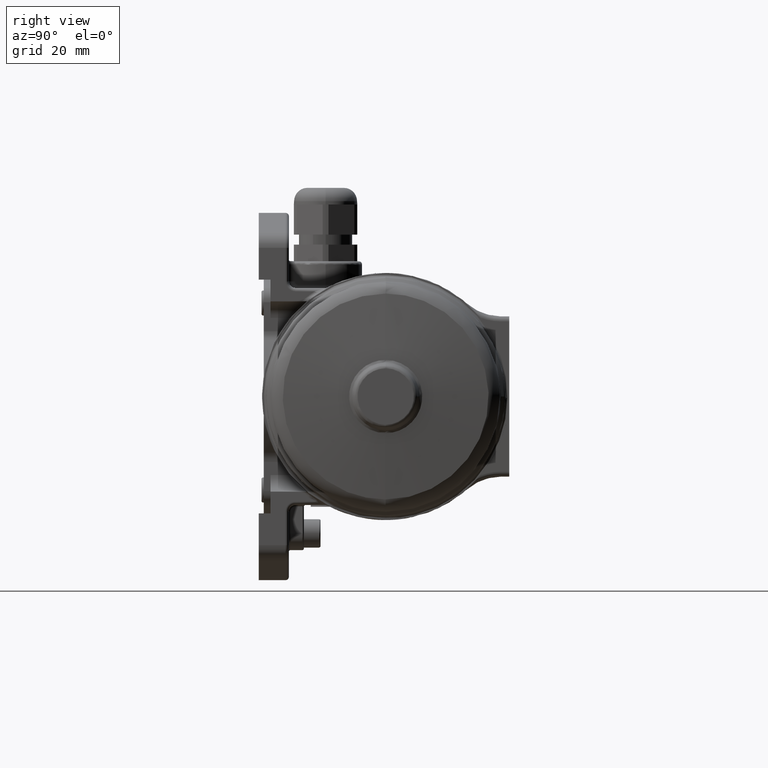
[diagram: clean part render]
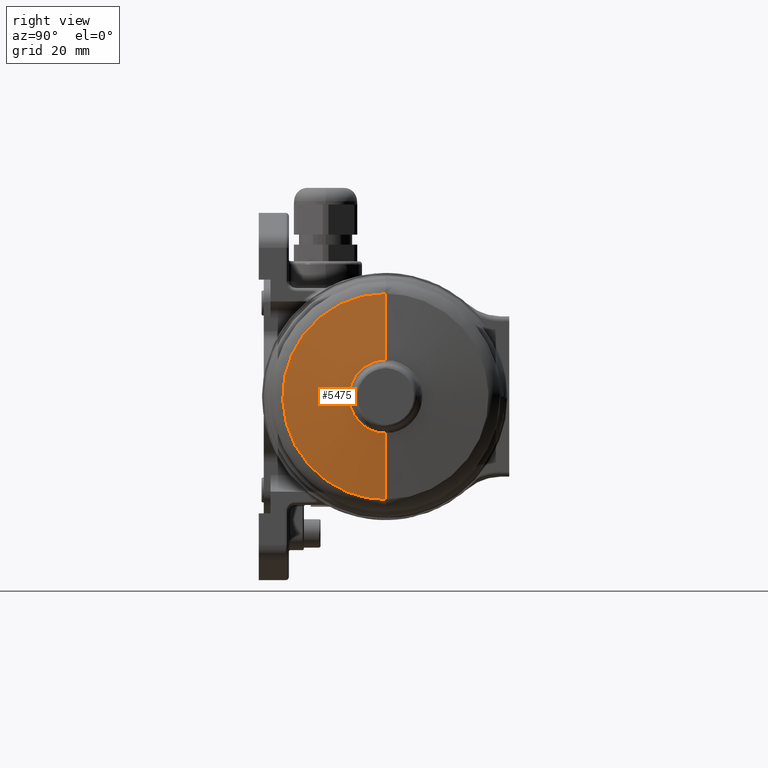
[diagram: same view with one face highlighted and labeled with its STEP entity id]
A machine part, right view. The second image highlights one B-rep face of the part: STEP entity #5475.
In plain terms, the highlighted conical surface has half-angle 85 deg.
Its self-contained STEP definition (entity closure, byte-faithful):
#5417 = VERTEX_POINT ( 'NONE', #14930 ) ;
#5419 = VERTEX_POINT ( 'NONE', #14919 ) ;
#5423 = EDGE_CURVE ( 'NONE', #5417, #5419, #14968, .T. ) ;
#5426 = VERTEX_POINT ( 'NONE', #14965 ) ;
#5432 = VERTEX_POINT ( 'NONE', #14987 ) ;
#5433 = ORIENTED_EDGE ( 'NONE', *, *, #5477, .T. ) ;
#5475 = ADVANCED_FACE ( 'NONE', ( #15656 ), #15699, .T. ) ;
#5476 = EDGE_CURVE ( 'NONE', #5426, #5490, #15724, .T. ) ;
#5477 = EDGE_CURVE ( 'NONE', #5491, #5426, #15762, .T. ) ;
#5478 = ORIENTED_EDGE ( 'NONE', *, *, #5483, .T. ) ;
#5479 = ORIENTED_EDGE ( 'NONE', *, *, #5476, .T. ) ;
#5480 = EDGE_CURVE ( 'NONE', #5490, #5419, #15702, .T. ) ;
#5481 = ORIENTED_EDGE ( 'NONE', *, *, #5480, .T. ) ;
#5482 = ORIENTED_EDGE ( 'NONE', *, *, #5488, .T. ) ;
#5483 = EDGE_CURVE ( 'NONE', #5432, #5491, #15765, .T. ) ;
#5488 = EDGE_CURVE ( 'NONE', #5417, #5432, #16069, .T. ) ;
#5490 = VERTEX_POINT ( 'NONE', #16072 ) ;
#5491 = VERTEX_POINT ( 'NONE', #16059 ) ;
#5493 = EDGE_LOOP ( 'NONE', ( #5433, #5479, #5481, #5495, #5482, #5478 ) ) ;
#5495 = ORIENTED_EDGE ( 'NONE', *, *, #5423, .F. ) ;
#14919 = CARTESIAN_POINT ( 'NONE',  ( 81.95462959214079000, -1.560809401230550100E-012, -10.96196180581291900 ) ) ;
#14925 = CARTESIAN_POINT ( 'NONE',  ( 81.95462959226719600, -3.469357150219284600E-015, 7.429153428420779200E-020 ) ) ;
#14929 = DIRECTION ( 'NONE',  ( 1.000000000000000000, -2.250607748826409800E-016, 2.250608388436215200E-016 ) ) ;
#14930 = CARTESIAN_POINT ( 'NONE',  ( 81.95462959209839900, -0.005764411179796489900, -10.96196029262336000 ) ) ;
#14965 = CARTESIAN_POINT ( 'NONE',  ( 80.21629720918949100, -0.01621276101662820100, -30.83118760177880100 ) ) ;
#14966 = DIRECTION ( 'NONE',  ( 0.0000000000000000000, 1.179611963664229600E-016, 1.000000000000000000 ) ) ;
#14967 = AXIS2_PLACEMENT_3D ( 'NONE', #14925, #14929, #14966 ) ;
#14968 = CIRCLE ( 'NONE', #14967, 10.96196180631849900 ) ;
#14987 = CARTESIAN_POINT ( 'NONE',  ( 81.95462959216169500, 4.762622882739900400E-015, 10.96196180509426000 ) ) ;
#15656 = FACE_OUTER_BOUND ( 'NONE', #5493, .T. ) ;
#15699 = CONICAL_SURFACE ( 'NONE', #15718, 30.83119186598505100, 1.483529864195553200 ) ;
#15701 = CARTESIAN_POINT ( 'NONE',  ( 80.21629720906169300, -7.259985094598360000E-012, -30.83119186602600300 ) ) ;
#15702 = LINE ( 'NONE', #15701, #15795 ) ;
#15703 = CARTESIAN_POINT ( 'NONE',  ( 80.21629720906530300, -3.469357261404724700E-015, 7.429153428420779200E-020 ) ) ;
#15705 = DIRECTION ( 'NONE',  ( 1.000000000000000000, -2.250607748826409800E-016, 2.250608388436215200E-016 ) ) ;
#15706 = DIRECTION ( 'NONE',  ( -1.000000000000000000, 2.250607748826409800E-016, -2.250608388436215200E-016 ) ) ;
#15718 = AXIS2_PLACEMENT_3D ( 'NONE', #15703, #15706, #15768 ) ;
#15722 = CARTESIAN_POINT ( 'NONE',  ( 80.21629720906530300, -3.469357261404724700E-015, 7.429153428420779200E-020 ) ) ;
#15724 = CIRCLE ( 'NONE', #15767, 30.83119186598505100 ) ;
#15729 = CARTESIAN_POINT ( 'NONE',  ( 80.21629720968344700, -2.033771504637456000, -30.83012665102146600 ) ) ;
#15730 = CARTESIAN_POINT ( 'NONE',  ( 80.21629720968344700, -4.051175919720908100, -30.63039192564424300 ) ) ;
#15731 = CARTESIAN_POINT ( 'NONE',  ( 80.21629720968343200, -8.008371734438084000, -29.84122849371573200 ) ) ;
#15732 = CARTESIAN_POINT ( 'NONE',  ( 80.21629720968341800, -9.948065350044796400, -29.25181928773554000 ) ) ;
#15733 = CARTESIAN_POINT ( 'NONE',  ( 80.21629720968343200, -13.67531741788478600, -27.70593130308375200 ) ) ;
#15734 = CARTESIAN_POINT ( 'NONE',  ( 80.21629720968343200, -15.46278376810089000, -26.74949072397556200 ) ) ;
#15735 = CARTESIAN_POINT ( 'NONE',  ( 80.21629720968343200, -18.81690367547560100, -24.50626597258283800 ) ) ;
#15736 = CARTESIAN_POINT ( 'NONE',  ( 80.21629720968344700, -20.38347435087477100, -23.21953723135604600 ) ) ;
#15737 = CARTESIAN_POINT ( 'NONE',  ( 80.21629720968343200, -23.23560815933845100, -20.36515281839994900 ) ) ;
#15738 = CARTESIAN_POINT ( 'NONE',  ( 80.21629720968340400, -24.52110081493802300, -18.79756767974900100 ) ) ;
#15739 = CARTESIAN_POINT ( 'NONE',  ( 80.21629720968343200, -26.76167919353541400, -15.44167939679467100 ) ) ;
#15740 = CARTESIAN_POINT ( 'NONE',  ( 80.21629720968343200, -27.71670955086850800, -13.65345917794802200 ) ) ;
#15741 = CARTESIAN_POINT ( 'NONE',  ( 80.21629720968343200, -29.25965705911104600, -9.924988898447802300 ) ) ;
#15742 = CARTESIAN_POINT ( 'NONE',  ( 80.21629720968343200, -29.84753608311751800, -7.984830969913937300 ) ) ;
#15743 = CARTESIAN_POINT ( 'NONE',  ( 80.21629720968343200, -30.63357789817762400, -4.027013907026199200 ) ) ;
#15744 = CARTESIAN_POINT ( 'NONE',  ( 80.21629720968341800, -30.83172126579665900, -2.009452572050674000 ) ) ;
#15745 = CARTESIAN_POINT ( 'NONE',  ( 80.21629720968341800, -30.83066032064914100, 2.025665333624907300 ) ) ;
#15746 = CARTESIAN_POINT ( 'NONE',  ( 80.21629720968343200, -30.63145603409899900, 4.043122194809252600 ) ) ;
#15747 = CARTESIAN_POINT ( 'NONE',  ( 80.21629720968340400, -29.84333308666679600, 8.000525365834295900 ) ) ;
#15748 = CARTESIAN_POINT ( 'NONE',  ( 80.21629720968341800, -29.25443390064500800, 9.940373886524147600 ) ) ;
#15749 = CARTESIAN_POINT ( 'NONE',  ( 80.21629720968341800, -27.70952596801771200, 13.66803228262397600 ) ) ;
#15750 = CARTESIAN_POINT ( 'NONE',  ( 80.21629720968343200, -26.75355539675809900, 15.45575004597624200 ) ) ;
#15751 = CARTESIAN_POINT ( 'NONE',  ( 80.21629720968341800, -24.51121261463522000, 18.81045964380578900 ) ) ;
#15752 = CARTESIAN_POINT ( 'NONE',  ( 80.21629720968341800, -23.22489581303584000, 20.37736858195212300 ) ) ;
#15753 = CARTESIAN_POINT ( 'NONE',  ( 80.21629720968343200, -20.37126140431964300, 23.23025278915354300 ) ) ;
#15754 = CARTESIAN_POINT ( 'NONE',  ( 80.21629720968343200, -18.80401431174824700, 24.51615756220101600 ) ) ;
#15755 = CARTESIAN_POINT ( 'NONE',  ( 80.21629720968340400, -15.44871525537855400, 26.75761822003842700 ) ) ;
#15756 = CARTESIAN_POINT ( 'NONE',  ( 80.21629720968341800, -13.66074620247698900, 27.71311871736215700 ) ) ;
#15757 = CARTESIAN_POINT ( 'NONE',  ( 80.21629720968343200, -9.932681735814393100, 29.25704649116376600 ) ) ;
#15758 = CARTESIAN_POINT ( 'NONE',  ( 80.21629720968340400, -7.992678444145275800, 29.84543561651587900 ) ) ;
#15759 = CARTESIAN_POINT ( 'NONE',  ( 80.21629720968343200, -4.035068190391935000, 30.63251802496794000 ) ) ;
#15760 = CARTESIAN_POINT ( 'NONE',  ( 80.21629720968343200, -2.017559022575683400, 30.83119185891980900 ) ) ;
#15761 = CARTESIAN_POINT ( 'NONE',  ( 80.21629720937450300, -1.567196460093675000E-015, 30.83119186067429900 ) ) ;
#15762 = B_SPLINE_CURVE_WITH_KNOTS ( 'NONE', 3,
 ( #15761, #15760, #15759, #15758, #15757, #15756, #15755, #15754, #15753, #15752, #15751, #15750, #15749, #15748, #15747, #15746, #15745, #15744, #15743, #15742, #15741, #15740, #15739, #15738, #15737, #15736, #15735, #15734, #15733, #15732, #15731, #15730, #15729, #15798 ),
 .UNSPECIFIED., .F., .F.,
 ( 4, 2, 2, 2, 2, 2, 2, 2, 2, 2, 2, 2, 2, 2, 2, 2, 4 ),
 ( 0.0000000000000000000, 0.06249999999999998600, 0.1249999999999999700, 0.1874999999999999400, 0.2499999999999999400, 0.3124999999999999400, 0.3749999999999999400, 0.4375000000000000000, 0.5000000000000000000, 0.5625000000000000000, 0.6250000000000000000, 0.6875000000000000000, 0.7499999999999998900, 0.8124999999999998900, 0.8749999999999998900, 0.9374999999999998900, 1.000000000000000000 ),
 .UNSPECIFIED. ) ;
#15763 = VECTOR ( 'NONE', #15790, 1000.000000000000000 ) ;
#15764 = CARTESIAN_POINT ( 'NONE',  ( 80.21629720906169300, 1.675270165144295100E-016, 30.83119186602600300 ) ) ;
#15765 = LINE ( 'NONE', #15764, #15763 ) ;
#15766 = DIRECTION ( 'NONE',  ( 0.0000000000000000000, 1.179611963664230100E-016, 1.000000000000000000 ) ) ;
#15767 = AXIS2_PLACEMENT_3D ( 'NONE', #15722, #15705, #15766 ) ;
#15768 = DIRECTION ( 'NONE',  ( 0.0000000000000000000, 1.179611963664230100E-016, 1.000000000000000000 ) ) ;
#15790 = DIRECTION ( 'NONE',  ( -0.08715574274728699100, 1.735634164271784900E-016, 0.9961946980917780700 ) ) ;
#15794 = DIRECTION ( 'NONE',  ( 0.08715574274728610200, 2.344447863399835400E-013, 0.9961946980917781900 ) ) ;
#15795 = VECTOR ( 'NONE', #15794, 999.9999999999998900 ) ;
#15798 = CARTESIAN_POINT ( 'NONE',  ( 80.21629720918949100, -0.01621276101662820100, -30.83118760177880100 ) ) ;
#16042 = CARTESIAN_POINT ( 'NONE',  ( 81.95462959216169500, 4.762622882739900400E-015, 10.96196180509426000 ) ) ;
#16043 = CARTESIAN_POINT ( 'NONE',  ( 81.95462959205674700, -1.434677261490458800, 10.96196180872352400 ) ) ;
#16044 = CARTESIAN_POINT ( 'NONE',  ( 81.95462959205674700, -2.868790415204364800, 10.67674796434675100 ) ) ;
#16045 = CARTESIAN_POINT ( 'NONE',  ( 81.95462959205674700, -5.519800502068164900, 9.578867780584451100 ) ) ;
#16046 = CARTESIAN_POINT ( 'NONE',  ( 81.95462959205674700, -6.735655071582706400, 8.766633122083590000 ) ) ;
#16047 = CARTESIAN_POINT ( 'NONE',  ( 81.95462959205674700, -8.764861827360862300, 6.737959831271136400 ) ) ;
#16048 = CARTESIAN_POINT ( 'NONE',  ( 81.95462959205674700, -9.577416139885212200, 5.522318862943106600 ) ) ;
#16049 = CARTESIAN_POINT ( 'NONE',  ( 81.95462959205674700, -10.67599331023582300, 2.871597531053236000 ) ) ;
#16050 = CARTESIAN_POINT ( 'NONE',  ( 81.95462959205674700, -10.96158421312585300, 1.437559417589762100 ) ) ;
#16051 = CARTESIAN_POINT ( 'NONE',  ( 81.95462959205674700, -10.96233864650886300, -1.431795006210444800 ) ) ;
#16052 = CARTESIAN_POINT ( 'NONE',  ( 81.95462959205674700, -10.67750188036248100, -2.865983101032983300 ) ) ;
#16053 = CARTESIAN_POINT ( 'NONE',  ( 81.95462959205674700, -9.580318759086123800, -5.517281759603498900 ) ) ;
#16054 = CARTESIAN_POINT ( 'NONE',  ( 81.95462959205674700, -8.768403810759387800, -6.733349846251207400 ) ) ;
#16055 = CARTESIAN_POINT ( 'NONE',  ( 81.95462959205674700, -6.740264125156998400, -8.763089926713776700 ) ) ;
#16056 = CARTESIAN_POINT ( 'NONE',  ( 81.95462959205673300, -5.524836842054059000, -9.575963837088830000 ) ) ;
#16057 = CARTESIAN_POINT ( 'NONE',  ( 81.95462959205674700, -2.874404448385357500, -10.67523791808189200 ) ) ;
#16058 = CARTESIAN_POINT ( 'NONE',  ( 81.95462959205674700, -1.440441474308930000, -10.96120585974196400 ) ) ;
#16059 = CARTESIAN_POINT ( 'NONE',  ( 80.21629720937450300, -1.567196460093675000E-015, 30.83119186067429900 ) ) ;
#16067 = CARTESIAN_POINT ( 'NONE',  ( 81.95462959209839900, -0.005764411179796489900, -10.96196029262336000 ) ) ;
#16069 = B_SPLINE_CURVE_WITH_KNOTS ( 'NONE', 3,
 ( #16067, #16058, #16057, #16056, #16055, #16054, #16053, #16052, #16051, #16050, #16049, #16048, #16047, #16046, #16045, #16044, #16043, #16042 ),
 .UNSPECIFIED., .F., .F.,
 ( 4, 2, 2, 2, 2, 2, 2, 2, 4 ),
 ( 0.0000000000000000000, 0.1250000000000000000, 0.2500000000000000000, 0.3750000000000000000, 0.5000000000000000000, 0.6250000000000000000, 0.7500000000000000000, 0.8750000000000000000, 1.000000000000000000 ),
 .UNSPECIFIED. ) ;
#16072 = CARTESIAN_POINT ( 'NONE',  ( 80.21629720906580000, -5.814960439109021300E-012, -30.83119186049519900 ) ) ;